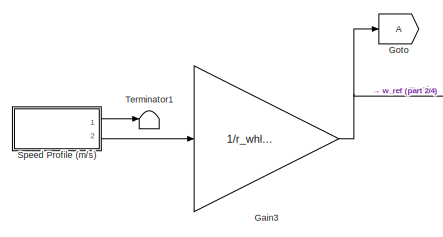
[diagram: root canvas - part 1/4, top left region]
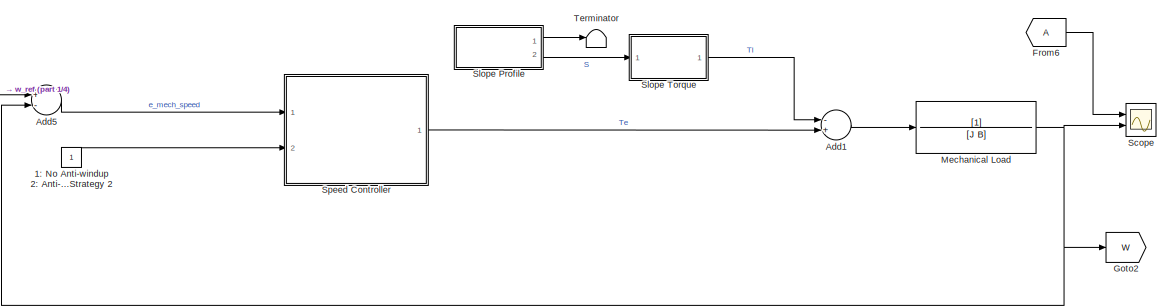
[diagram: root canvas - part 2/4, top center region]
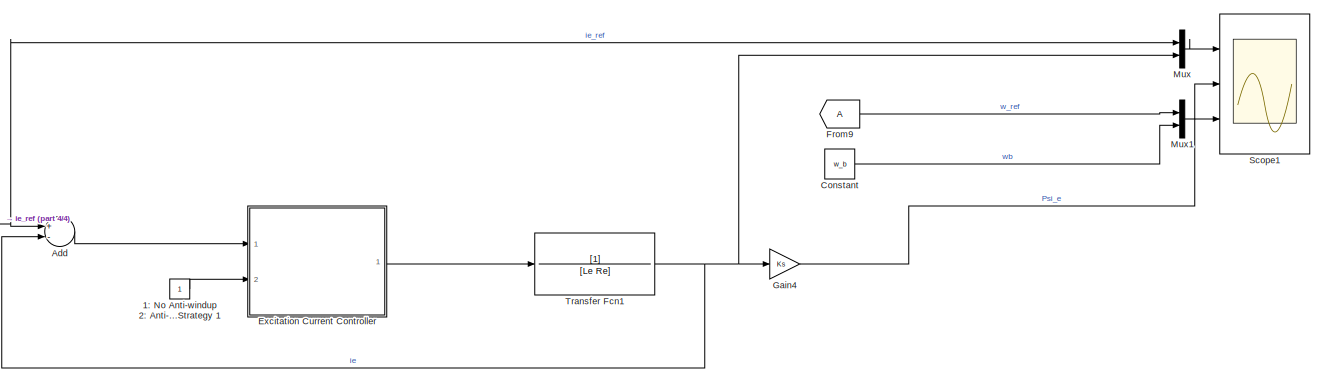
[diagram: root canvas - part 3/4, bottom center region]
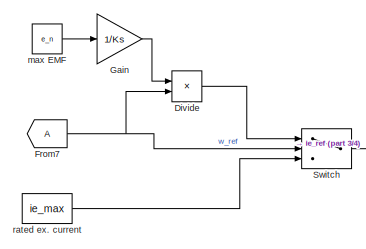
[diagram: root canvas - part 4/4, bottom left region]
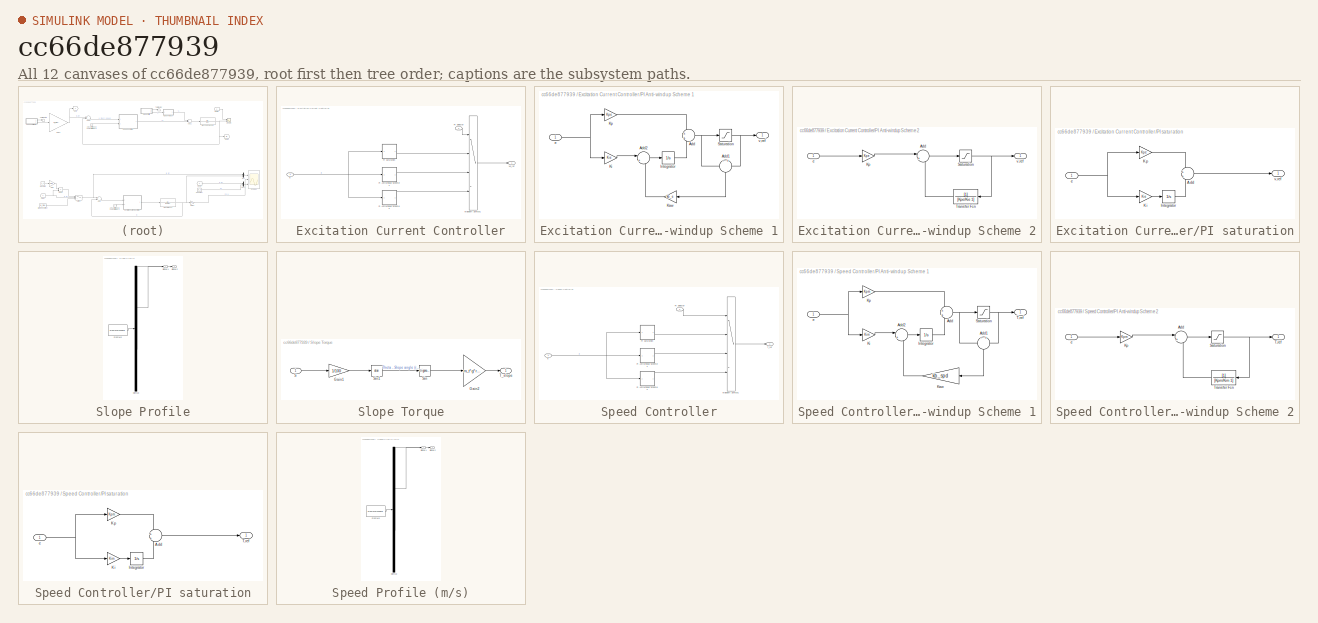
[diagram: thumbnail index - all 12 canvases of the model, root first then tree order]
MODEL slx_cc66de877939
KIND model
CONFIG AbsTol = auto
CONFIG EnableMultiTasking = off
CONFIG FixedStep = auto
CONFIG MaxStep = auto
CONFIG MinStep = auto
CONFIG RelTol = 1e-3
CONFIG SampleTimeConstraint = Unconstrained
CONFIG Solver = VariableStepAuto
CONFIG SolverName = VariableStepAuto
CONFIG StartTime = 0.0
CONFIG StopTime = 10.0
BLOCK [Constant] 1: No Anti-windup 2: Anti-windup Stragtegy 1 3: Anti-windup Strategy 2
BLOCK [Constant] 1: No Anti-windup 2: Anti-windup Strategy 1 3: Anti-windup Strategy 1
BLOCK [Sum] Add
  InputSameDT = off
  Inputs = +-
  OutDataTypeStr = Inherit: Inherit via internal rule
  Ports = [2, 1]
  SaturateOnIntegerOverflow = off
BLOCK [Sum] Add1
  InputSameDT = off
  Inputs = -+
  OutDataTypeStr = Inherit: Inherit via internal rule
  Ports = [2, 1]
  SaturateOnIntegerOverflow = off
BLOCK [Sum] Add5
  InputSameDT = off
  Inputs = +-
  OutDataTypeStr = Inherit: Inherit via internal rule
  Ports = [2, 1]
  SaturateOnIntegerOverflow = off
BLOCK [Constant] Constant
  Value = w_b
BLOCK [Product] Divide
  InputSameDT = off
  Inputs = */
  OutDataTypeStr = Inherit: Inherit via internal rule
  Ports = [2, 1]
  RndMeth = Floor
  SaturateOnIntegerOverflow = off
BLOCK [SubSystem] Excitation Current Controller
  Ports = [2, 1]
  RequestExecContextInheritance = off
BLOCK [MultiPortSwitch] Excitation Current Controller/Multiport Switch1
  InputSameDT = off
  Ports = [4, 1]
  SaturateOnIntegerOverflow = off
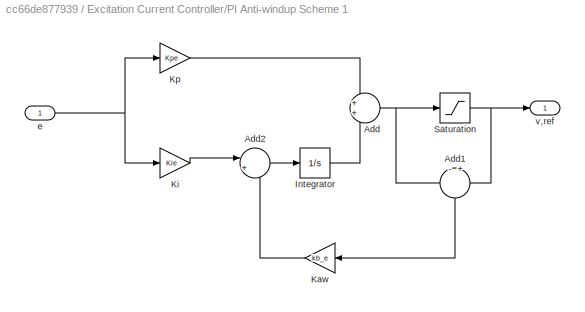
BLOCK [SubSystem] Excitation Current Controller/PI Anti-windup Scheme 1
  Ports = [1, 1]
  RequestExecContextInheritance = off
BLOCK [Sum] Excitation Current Controller/PI Anti-windup Scheme 1/Add
  IconShape = round
  InputSameDT = off
  OutDataTypeStr = Inherit: Inherit via internal rule
  Ports = [2, 1]
  SaturateOnIntegerOverflow = off
BLOCK [Sum] Excitation Current Controller/PI Anti-windup Scheme 1/Add1
  IconShape = round
  InputSameDT = off
  Inputs = -+
  OutDataTypeStr = Inherit: Inherit via internal rule
  Ports = [2, 1]
  SaturateOnIntegerOverflow = off
BLOCK [Sum] Excitation Current Controller/PI Anti-windup Scheme 1/Add2
  IconShape = round
  InputSameDT = off
  Inputs = |++
  OutDataTypeStr = Inherit: Inherit via internal rule
  Ports = [2, 1]
  SaturateOnIntegerOverflow = off
BLOCK [Integrator] Excitation Current Controller/PI Anti-windup Scheme 1/Integrator
  Ports = [1, 1]
BLOCK [Gain] Excitation Current Controller/PI Anti-windup Scheme 1/Kaw
  Gain = kb_e
  OutDataTypeStr = Inherit: Inherit via internal rule
  ParamDataTypeStr = Inherit: Inherit via internal rule
  SaturateOnIntegerOverflow = off
BLOCK [Gain] Excitation Current Controller/PI Anti-windup Scheme 1/Ki
  Gain = Kie
  OutDataTypeStr = Inherit: Inherit via internal rule
  ParamDataTypeStr = Inherit: Inherit via internal rule
  SaturateOnIntegerOverflow = off
BLOCK [Gain] Excitation Current Controller/PI Anti-windup Scheme 1/Kp
  Gain = Kpe
  OutDataTypeStr = Inherit: Inherit via internal rule
  ParamDataTypeStr = Inherit: Inherit via internal rule
  SaturateOnIntegerOverflow = off
BLOCK [Saturate] Excitation Current Controller/PI Anti-windup Scheme 1/Saturation
  InputPortMap = u0
  LowerLimit = -1
  Ports = [1, 1]
  UpperLimit = 1
BLOCK [Inport] Excitation Current Controller/PI Anti-windup Scheme 1/e
  IconDisplay = Port number
BLOCK [Outport] Excitation Current Controller/PI Anti-windup Scheme 1/v,ref
  IconDisplay = Port number
BLOCK [SubSystem] Excitation Current Controller/PI Anti-windup Scheme 2
  Ports = [1, 1]
  RequestExecContextInheritance = off
BLOCK [Sum] Excitation Current Controller/PI Anti-windup Scheme 2/Add
  IconShape = round
  InputSameDT = off
  Inputs = |++
  OutDataTypeStr = Inherit: Inherit via internal rule
  Ports = [2, 1]
  SaturateOnIntegerOverflow = off
BLOCK [Gain] Excitation Current Controller/PI Anti-windup Scheme 2/Kp
  Gain = Kpe
  OutDataTypeStr = Inherit: Inherit via internal rule
  ParamDataTypeStr = Inherit: Inherit via internal rule
  SaturateOnIntegerOverflow = off
BLOCK [Saturate] Excitation Current Controller/PI Anti-windup Scheme 2/Saturation
  InputPortMap = u0
  LowerLimit = -1
  Ports = [1, 1]
  UpperLimit = 1
BLOCK [TransferFcn] Excitation Current Controller/PI Anti-windup Scheme 2/Transfer Fcn
  Denominator = [Kpe/Kie 1]
BLOCK [Inport] Excitation Current Controller/PI Anti-windup Scheme 2/e
  IconDisplay = Port number
BLOCK [Outport] Excitation Current Controller/PI Anti-windup Scheme 2/v,ref
  IconDisplay = Port number
BLOCK [Inport] Excitation Current Controller/PI Selector 
  IconDisplay = Port number
  Port = 2
BLOCK [SubSystem] Excitation Current Controller/PI saturation
  Ports = [1, 1]
  RequestExecContextInheritance = off
BLOCK [Sum] Excitation Current Controller/PI saturation/Add
  IconShape = round
  InputSameDT = off
  OutDataTypeStr = Inherit: Inherit via internal rule
  Ports = [2, 1]
  SaturateOnIntegerOverflow = off
BLOCK [Integrator] Excitation Current Controller/PI saturation/Integrator
  Ports = [1, 1]
BLOCK [Gain] Excitation Current Controller/PI saturation/Ki
  Gain = Kie
  OutDataTypeStr = Inherit: Inherit via internal rule
  ParamDataTypeStr = Inherit: Inherit via internal rule
  SaturateOnIntegerOverflow = off
BLOCK [Gain] Excitation Current Controller/PI saturation/Kp
  Gain = Kpe
  OutDataTypeStr = Inherit: Inherit via internal rule
  ParamDataTypeStr = Inherit: Inherit via internal rule
  SaturateOnIntegerOverflow = off
BLOCK [Inport] Excitation Current Controller/PI saturation/e
  IconDisplay = Port number
BLOCK [Outport] Excitation Current Controller/PI saturation/v,ref
  IconDisplay = Port number
BLOCK [Inport] Excitation Current Controller/e
  IconDisplay = Port number
BLOCK [Outport] Excitation Current Controller/ve_ref 
  IconDisplay = Port number
BLOCK [From] From6
BLOCK [From] From7
BLOCK [From] From9
BLOCK [Gain] Gain
  Gain = 1/Ks
  OutDataTypeStr = Inherit: Inherit via internal rule
  ParamDataTypeStr = Inherit: Inherit via internal rule
  SaturateOnIntegerOverflow = off
BLOCK [Gain] Gain3
  Gain = 1/r_whl*1000/3600
  OutDataTypeStr = Inherit: Inherit via internal rule
  ParamDataTypeStr = Inherit: Inherit via internal rule
  SaturateOnIntegerOverflow = off
BLOCK [Gain] Gain4
  Gain = Ks
  OutDataTypeStr = Inherit: Inherit via internal rule
  ParamDataTypeStr = Inherit: Inherit via internal rule
  SaturateOnIntegerOverflow = off
BLOCK [Goto] Goto
BLOCK [Goto] Goto2
  GotoTag = W
BLOCK [TransferFcn] Mechanical Load
  Denominator = [J B]
BLOCK [Mux] Mux
  DisplayOption = bar
  Inputs = 2
  Ports = [2, 1]
BLOCK [Mux] Mux1
  DisplayOption = bar
  Inputs = 2
  Ports = [2, 1]
BLOCK [Scope] Scope
  Floating = off
  NumInputPorts = 2
  Ports = [2]
  ScopeSpecificationString = Simulink.scopes.TimeScopeBlockCfg('CurrentConfiguration', extmgr.ConfigurationSet(extmgr.Configuration('Core','General UI',true),extmgr.Configuration('Core','Source UI',true),extmgr.Configuration('Sources','WiredSimulink',true),extmgr.Configuration('Visuals','Time Domain',true,'SerializedDisplays',{struct('MinYLimReal','-176.625','MaxYLimReal','1589.625','YLabelReal','','MinYLimMag',' 0.00000','Ma...<+1376ch>
BLOCK [Scope] Scope1
  Floating = off
  NumInputPorts = 3
  Ports = [3]
  ScopeSpecificationString = Simulink.scopes.TimeScopeBlockCfg('CurrentConfiguration', extmgr.ConfigurationSet(extmgr.Configuration('Core','General UI',true),extmgr.Configuration('Core','Source UI',true),extmgr.Configuration('Sources','WiredSimulink',true,'DataLoggingVariableName','ScopeData1'),extmgr.Configuration('Visuals','Time Domain',true,'SerializedDisplays',{struct('MinYLimReal','-0.125','MaxYLimReal','1.125','YLabelRe...<+2806ch>
BLOCK [SubSystem] Slope Profile
  ClipboardFcn = sigbuilder_block('clipboard');
  CloseFcn = sigbuilder_block('close');
  ContinueFcn = sigbuilder_block('continue');
  CopyFcn = sigbuilder_block('copy');
  DeleteFcn = sigbuilder_block('delete');
  LoadFcn = sigbuilder_block('load');
  MaskHideContents = on
  ModelCloseFcn = sigbuilder_block('modelClose');
  NameChangeFcn = sigbuilder_block('namechange');
  OpenFcn = sigbuilder_block('open',[437.6 199.2 550.4 400 ]);
  PauseFcn = sigbuilder_block('pause');
  Ports = [0, 2]
  PreSaveFcn = sigbuilder_block('preSave');
  RequestExecContextInheritance = off
  StartFcn = sigbuilder_block('start');
  StopFcn = sigbuilder_block('stop');
  Tag = STV Subsys
BLOCK [Demux] Slope Profile/Demux
  Outputs = 2
  Ports = [1, 2]
  Tag = STV Demux
BLOCK [FromWorkspace] Slope Profile/FromWs
  SampleTime = 0
  Tag = STV FromWs
  VariableName = tuvar
  ZeroCross = on
BLOCK [Outport] Slope Profile/Signal 1
  IconDisplay = Port number
  Tag = STV Outport
BLOCK [Outport] Slope Profile/Signal 2
  IconDisplay = Port number
  Port = 2
  Tag = STV Outport
BLOCK [SubSystem] Slope Torque
  Ports = [1, 1]
  RequestExecContextInheritance = off
BLOCK [Gain] Slope Torque/Gain1
  Gain = 1/100
  OutDataTypeStr = Inherit: Inherit via internal rule
  ParamDataTypeStr = Inherit: Inherit via internal rule
  SaturateOnIntegerOverflow = off
BLOCK [Gain] Slope Torque/Gain2
  Gain = m_t*g*r_whl
  OutDataTypeStr = Inherit: Inherit via internal rule
  ParamDataTypeStr = Inherit: Inherit via internal rule
  SaturateOnIntegerOverflow = off
BLOCK [Inport] Slope Torque/S
  IconDisplay = Port number
BLOCK [Trigonometry] Slope Torque/Sin
  Ports = [1, 1]
BLOCK [Trigonometry] Slope Torque/Sin1
  Operator = atan
  Ports = [1, 1]
BLOCK [Outport] Slope Torque/T_slope
  IconDisplay = Port number
BLOCK [SubSystem] Speed Controller
  Ports = [2, 1]
  RequestExecContextInheritance = off
BLOCK [MultiPortSwitch] Speed Controller/Multiport Switch1
  InputSameDT = off
  Ports = [4, 1]
  SaturateOnIntegerOverflow = off
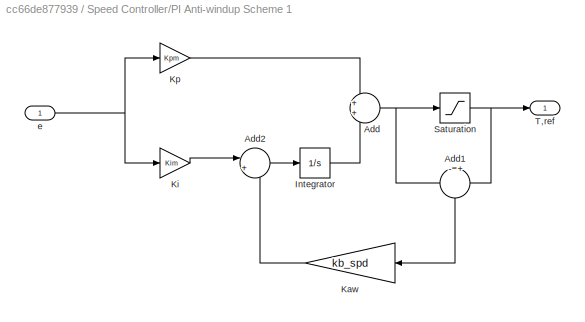
BLOCK [SubSystem] Speed Controller/PI Anti-windup Scheme 1
  Ports = [1, 1]
  RequestExecContextInheritance = off
BLOCK [Sum] Speed Controller/PI Anti-windup Scheme 1/Add
  IconShape = round
  InputSameDT = off
  OutDataTypeStr = Inherit: Inherit via internal rule
  Ports = [2, 1]
  SaturateOnIntegerOverflow = off
BLOCK [Sum] Speed Controller/PI Anti-windup Scheme 1/Add1
  IconShape = round
  InputSameDT = off
  Inputs = -+
  OutDataTypeStr = Inherit: Inherit via internal rule
  Ports = [2, 1]
  SaturateOnIntegerOverflow = off
BLOCK [Sum] Speed Controller/PI Anti-windup Scheme 1/Add2
  IconShape = round
  InputSameDT = off
  Inputs = |++
  OutDataTypeStr = Inherit: Inherit via internal rule
  Ports = [2, 1]
  SaturateOnIntegerOverflow = off
BLOCK [Integrator] Speed Controller/PI Anti-windup Scheme 1/Integrator
  Ports = [1, 1]
BLOCK [Gain] Speed Controller/PI Anti-windup Scheme 1/Kaw
  Gain = kb_spd
  OutDataTypeStr = Inherit: Inherit via internal rule
  ParamDataTypeStr = Inherit: Inherit via internal rule
  SaturateOnIntegerOverflow = off
BLOCK [Gain] Speed Controller/PI Anti-windup Scheme 1/Ki
  Gain = Kim
  OutDataTypeStr = Inherit: Inherit via internal rule
  ParamDataTypeStr = Inherit: Inherit via internal rule
  SaturateOnIntegerOverflow = off
BLOCK [Gain] Speed Controller/PI Anti-windup Scheme 1/Kp
  Gain = Kpm
  OutDataTypeStr = Inherit: Inherit via internal rule
  ParamDataTypeStr = Inherit: Inherit via internal rule
  SaturateOnIntegerOverflow = off
BLOCK [Saturate] Speed Controller/PI Anti-windup Scheme 1/Saturation
  InputPortMap = u0
  Ports = [1, 1]
BLOCK [Outport] Speed Controller/PI Anti-windup Scheme 1/T,ref
  IconDisplay = Port number
BLOCK [Inport] Speed Controller/PI Anti-windup Scheme 1/e
  IconDisplay = Port number
BLOCK [SubSystem] Speed Controller/PI Anti-windup Scheme 2
  Ports = [1, 1]
  RequestExecContextInheritance = off
BLOCK [Sum] Speed Controller/PI Anti-windup Scheme 2/Add
  IconShape = round
  InputSameDT = off
  Inputs = |++
  OutDataTypeStr = Inherit: Inherit via internal rule
  Ports = [2, 1]
  SaturateOnIntegerOverflow = off
BLOCK [Gain] Speed Controller/PI Anti-windup Scheme 2/Kp
  Gain = Kpm
  OutDataTypeStr = Inherit: Inherit via internal rule
  ParamDataTypeStr = Inherit: Inherit via internal rule
  SaturateOnIntegerOverflow = off
BLOCK [Saturate] Speed Controller/PI Anti-windup Scheme 2/Saturation
  InputPortMap = u0
  LowerLimit = -45
  Ports = [1, 1]
  UpperLimit = 45
BLOCK [Outport] Speed Controller/PI Anti-windup Scheme 2/T,ref
  IconDisplay = Port number
BLOCK [TransferFcn] Speed Controller/PI Anti-windup Scheme 2/Transfer Fcn
  Denominator = [Kpm/Kim 1]
BLOCK [Inport] Speed Controller/PI Anti-windup Scheme 2/e
  IconDisplay = Port number
BLOCK [Inport] Speed Controller/PI Selector
  IconDisplay = Port number
  Port = 2
BLOCK [SubSystem] Speed Controller/PI saturation
  Ports = [1, 1]
  RequestExecContextInheritance = off
BLOCK [Sum] Speed Controller/PI saturation/Add
  IconShape = round
  InputSameDT = off
  OutDataTypeStr = Inherit: Inherit via internal rule
  Ports = [2, 1]
  SaturateOnIntegerOverflow = off
BLOCK [Integrator] Speed Controller/PI saturation/Integrator
  Ports = [1, 1]
BLOCK [Gain] Speed Controller/PI saturation/Ki
  Gain = Kim
  OutDataTypeStr = Inherit: Inherit via internal rule
  ParamDataTypeStr = Inherit: Inherit via internal rule
  SaturateOnIntegerOverflow = off
BLOCK [Gain] Speed Controller/PI saturation/Kp
  Gain = Kpm
  OutDataTypeStr = Inherit: Inherit via internal rule
  ParamDataTypeStr = Inherit: Inherit via internal rule
  SaturateOnIntegerOverflow = off
BLOCK [Outport] Speed Controller/PI saturation/T,ref
  IconDisplay = Port number
BLOCK [Inport] Speed Controller/PI saturation/e
  IconDisplay = Port number
BLOCK [Outport] Speed Controller/T_ref 
  IconDisplay = Port number
BLOCK [Inport] Speed Controller/e
  IconDisplay = Port number
BLOCK [SubSystem] Speed Profile (m//s)
  ClipboardFcn = sigbuilder_block('clipboard');
  CloseFcn = sigbuilder_block('close');
  ContinueFcn = sigbuilder_block('continue');
  CopyFcn = sigbuilder_block('copy');
  DeleteFcn = sigbuilder_block('delete');
  LoadFcn = sigbuilder_block('load');
  MaskHideContents = on
  ModelCloseFcn = sigbuilder_block('modelClose');
  NameChangeFcn = sigbuilder_block('namechange');
  OpenFcn = sigbuilder_block('open',[437.6 199.2 550.4 400 ]);
  PauseFcn = sigbuilder_block('pause');
  Ports = [0, 2]
  PreSaveFcn = sigbuilder_block('preSave');
  RequestExecContextInheritance = off
  StartFcn = sigbuilder_block('start');
  StopFcn = sigbuilder_block('stop');
  Tag = STV Subsys
BLOCK [Demux] Speed Profile (m//s)/Demux
  Outputs = 2
  Ports = [1, 2]
  Tag = STV Demux
BLOCK [FromWorkspace] Speed Profile (m//s)/FromWs
  SampleTime = 0
  Tag = STV FromWs
  VariableName = tuvar
  ZeroCross = on
BLOCK [Outport] Speed Profile (m//s)/Signal 1
  IconDisplay = Port number
  Tag = STV Outport
BLOCK [Outport] Speed Profile (m//s)/Signal 2
  IconDisplay = Port number
  Port = 2
  Tag = STV Outport
BLOCK [Switch] Switch
  Criteria = u2 > Threshold
  InputSameDT = off
  SaturateOnIntegerOverflow = off
  Threshold = w_b
BLOCK [Terminator] Terminator
BLOCK [Terminator] Terminator1
BLOCK [TransferFcn] Transfer Fcn1
  Denominator = [Le Re]
BLOCK [Constant] max EMF
  Value = e_n
BLOCK [Constant] rated ex. current
  Value = ie_max
LINE 1: No Anti-windup 2: Anti-windup Stragtegy 1 3: Anti-windup Strategy 2:1 -> Speed Controller:2
LINE 1: No Anti-windup 2: Anti-windup Strategy 1 3: Anti-windup Strategy 1:1 -> Excitation Current Controller:2
LINE Add1:1 -> Mechanical Load:1
LINE Add5:1 -> Speed Controller:1
LINE Add:1 -> Excitation Current Controller:1
LINE Constant:1 -> Mux1:2
LINE Divide:1 -> Switch:1
LINE Excitation Current Controller/Multiport Switch1:1 -> Excitation Current Controller/ve_ref :1
LINE Excitation Current Controller/PI Anti-windup Scheme 1/Add1:1 -> Excitation Current Controller/PI Anti-windup Scheme 1/Kaw:1
LINE Excitation Current Controller/PI Anti-windup Scheme 1/Add2:1 -> Excitation Current Controller/PI Anti-windup Scheme 1/Integrator:1
NET Excitation Current Controller/PI Anti-windup Scheme 1/Add:1 -> Excitation Current Controller/PI Anti-windup Scheme 1/Add1:1, Excitation Current Controller/PI Anti-windup Scheme 1/Saturation:1
LINE Excitation Current Controller/PI Anti-windup Scheme 1/Integrator:1 -> Excitation Current Controller/PI Anti-windup Scheme 1/Add:2
LINE Excitation Current Controller/PI Anti-windup Scheme 1/Kaw:1 -> Excitation Current Controller/PI Anti-windup Scheme 1/Add2:2
LINE Excitation Current Controller/PI Anti-windup Scheme 1/Ki:1 -> Excitation Current Controller/PI Anti-windup Scheme 1/Add2:1
LINE Excitation Current Controller/PI Anti-windup Scheme 1/Kp:1 -> Excitation Current Controller/PI Anti-windup Scheme 1/Add:1
NET Excitation Current Controller/PI Anti-windup Scheme 1/Saturation:1 -> Excitation Current Controller/PI Anti-windup Scheme 1/Add1:2, Excitation Current Controller/PI Anti-windup Scheme 1/v,ref:1
NET Excitation Current Controller/PI Anti-windup Scheme 1/e:1 -> Excitation Current Controller/PI Anti-windup Scheme 1/Ki:1, Excitation Current Controller/PI Anti-windup Scheme 1/Kp:1
LINE Excitation Current Controller/PI Anti-windup Scheme 1:1 -> Excitation Current Controller/Multiport Switch1:3
LINE Excitation Current Controller/PI Anti-windup Scheme 2/Add:1 -> Excitation Current Controller/PI Anti-windup Scheme 2/Saturation:1
LINE Excitation Current Controller/PI Anti-windup Scheme 2/Kp:1 -> Excitation Current Controller/PI Anti-windup Scheme 2/Add:1
NET Excitation Current Controller/PI Anti-windup Scheme 2/Saturation:1 -> Excitation Current Controller/PI Anti-windup Scheme 2/Transfer Fcn:1, Excitation Current Controller/PI Anti-windup Scheme 2/v,ref:1
LINE Excitation Current Controller/PI Anti-windup Scheme 2/Transfer Fcn:1 -> Excitation Current Controller/PI Anti-windup Scheme 2/Add:2
LINE Excitation Current Controller/PI Anti-windup Scheme 2/e:1 -> Excitation Current Controller/PI Anti-windup Scheme 2/Kp:1
LINE Excitation Current Controller/PI Anti-windup Scheme 2:1 -> Excitation Current Controller/Multiport Switch1:4
LINE Excitation Current Controller/PI Selector :1 -> Excitation Current Controller/Multiport Switch1:1
LINE Excitation Current Controller/PI saturation/Add:1 -> Excitation Current Controller/PI saturation/v,ref:1
LINE Excitation Current Controller/PI saturation/Integrator:1 -> Excitation Current Controller/PI saturation/Add:2
LINE Excitation Current Controller/PI saturation/Ki:1 -> Excitation Current Controller/PI saturation/Integrator:1
LINE Excitation Current Controller/PI saturation/Kp:1 -> Excitation Current Controller/PI saturation/Add:1
NET Excitation Current Controller/PI saturation/e:1 -> Excitation Current Controller/PI saturation/Ki:1, Excitation Current Controller/PI saturation/Kp:1
LINE Excitation Current Controller/PI saturation:1 -> Excitation Current Controller/Multiport Switch1:2
NET Excitation Current Controller/e:1 -> Excitation Current Controller/PI Anti-windup Scheme 1:1, Excitation Current Controller/PI Anti-windup Scheme 2:1, Excitation Current Controller/PI saturation:1
LINE Excitation Current Controller:1 -> Transfer Fcn1:1
LINE From6:1 -> Scope:1
NET From7:1 -> Divide:2, Switch:2
LINE From9:1 -> Mux1:1
NET Gain3:1 -> Add5:1, Goto:1
LINE Gain4:1 -> Scope1:3
LINE Gain:1 -> Divide:1
NET Mechanical Load:1 -> Add5:2, Goto2:1, Scope:2
LINE Mux1:1 -> Scope1:2
LINE Mux:1 -> Scope1:1
LINE Slope Profile:1 -> Terminator:1
LINE Slope Profile:2 -> Slope Torque:1
LINE Slope Torque/Gain1:1 -> Slope Torque/Sin1:1
LINE Slope Torque/Gain2:1 -> Slope Torque/T_slope:1
LINE Slope Torque/S:1 -> Slope Torque/Gain1:1
LINE Slope Torque/Sin1:1 -> Slope Torque/Sin:1
LINE Slope Torque/Sin:1 -> Slope Torque/Gain2:1
LINE Slope Torque:1 -> Add1:1
LINE Speed Controller/Multiport Switch1:1 -> Speed Controller/T_ref :1
LINE Speed Controller/PI Anti-windup Scheme 1/Add1:1 -> Speed Controller/PI Anti-windup Scheme 1/Kaw:1
LINE Speed Controller/PI Anti-windup Scheme 1/Add2:1 -> Speed Controller/PI Anti-windup Scheme 1/Integrator:1
NET Speed Controller/PI Anti-windup Scheme 1/Add:1 -> Speed Controller/PI Anti-windup Scheme 1/Add1:1, Speed Controller/PI Anti-windup Scheme 1/Saturation:1
LINE Speed Controller/PI Anti-windup Scheme 1/Integrator:1 -> Speed Controller/PI Anti-windup Scheme 1/Add:2
LINE Speed Controller/PI Anti-windup Scheme 1/Kaw:1 -> Speed Controller/PI Anti-windup Scheme 1/Add2:2
LINE Speed Controller/PI Anti-windup Scheme 1/Ki:1 -> Speed Controller/PI Anti-windup Scheme 1/Add2:1
LINE Speed Controller/PI Anti-windup Scheme 1/Kp:1 -> Speed Controller/PI Anti-windup Scheme 1/Add:1
NET Speed Controller/PI Anti-windup Scheme 1/Saturation:1 -> Speed Controller/PI Anti-windup Scheme 1/Add1:2, Speed Controller/PI Anti-windup Scheme 1/T,ref:1
NET Speed Controller/PI Anti-windup Scheme 1/e:1 -> Speed Controller/PI Anti-windup Scheme 1/Ki:1, Speed Controller/PI Anti-windup Scheme 1/Kp:1
LINE Speed Controller/PI Anti-windup Scheme 1:1 -> Speed Controller/Multiport Switch1:3
LINE Speed Controller/PI Anti-windup Scheme 2/Add:1 -> Speed Controller/PI Anti-windup Scheme 2/Saturation:1
LINE Speed Controller/PI Anti-windup Scheme 2/Kp:1 -> Speed Controller/PI Anti-windup Scheme 2/Add:1
NET Speed Controller/PI Anti-windup Scheme 2/Saturation:1 -> Speed Controller/PI Anti-windup Scheme 2/T,ref:1, Speed Controller/PI Anti-windup Scheme 2/Transfer Fcn:1
LINE Speed Controller/PI Anti-windup Scheme 2/Transfer Fcn:1 -> Speed Controller/PI Anti-windup Scheme 2/Add:2
LINE Speed Controller/PI Anti-windup Scheme 2/e:1 -> Speed Controller/PI Anti-windup Scheme 2/Kp:1
LINE Speed Controller/PI Anti-windup Scheme 2:1 -> Speed Controller/Multiport Switch1:4
LINE Speed Controller/PI Selector:1 -> Speed Controller/Multiport Switch1:1
LINE Speed Controller/PI saturation/Add:1 -> Speed Controller/PI saturation/T,ref:1
LINE Speed Controller/PI saturation/Integrator:1 -> Speed Controller/PI saturation/Add:2
LINE Speed Controller/PI saturation/Ki:1 -> Speed Controller/PI saturation/Integrator:1
LINE Speed Controller/PI saturation/Kp:1 -> Speed Controller/PI saturation/Add:1
NET Speed Controller/PI saturation/e:1 -> Speed Controller/PI saturation/Ki:1, Speed Controller/PI saturation/Kp:1
LINE Speed Controller/PI saturation:1 -> Speed Controller/Multiport Switch1:2
NET Speed Controller/e:1 -> Speed Controller/PI Anti-windup Scheme 1:1, Speed Controller/PI Anti-windup Scheme 2:1, Speed Controller/PI saturation:1
LINE Speed Controller:1 -> Add1:2
LINE Speed Profile (m//s):1 -> Terminator1:1
LINE Speed Profile (m//s):2 -> Gain3:1
NET Switch:1 -> Add:1, Mux:1
NET Transfer Fcn1:1 -> Add:2, Gain4:1, Mux:2
LINE max EMF:1 -> Gain:1
LINE rated ex. current:1 -> Switch:3
note: NET lines group one-source signal fan-out (src -> all destinations, sorted); 1:1 wires keep LINE
